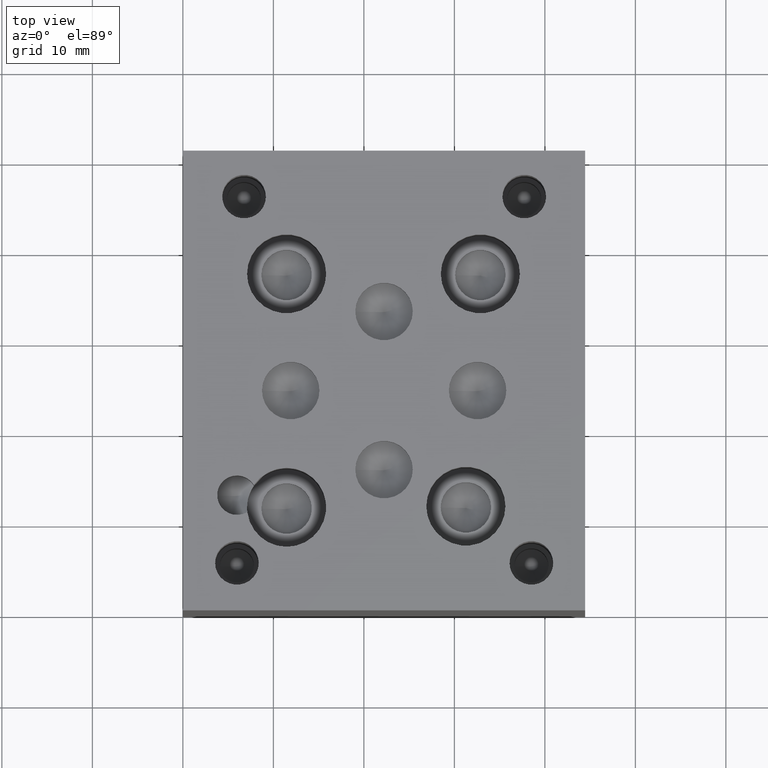
[diagram: clean part render]
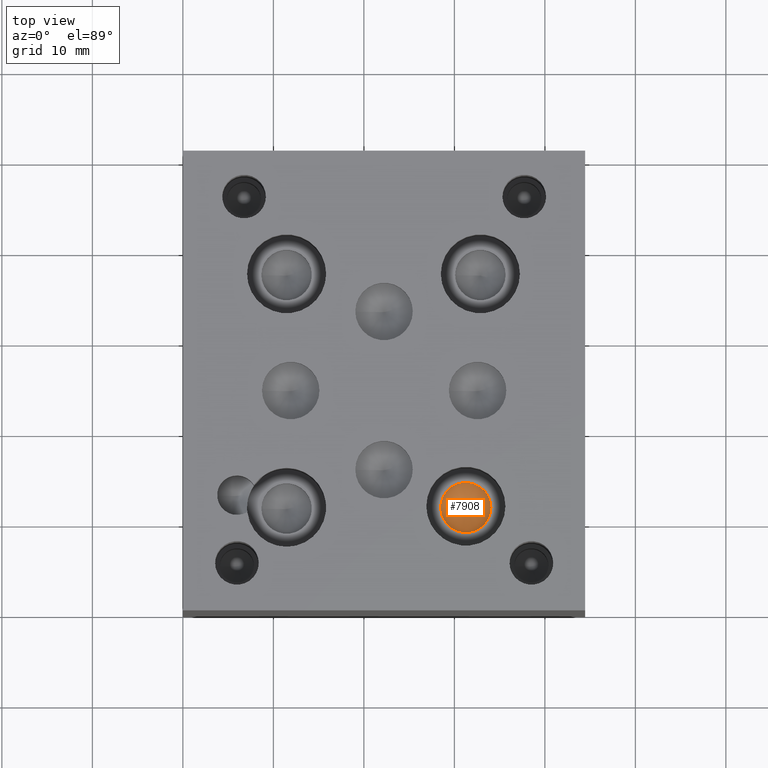
[diagram: same view with one face highlighted and labeled with its STEP entity id]
A machine part, top view. The second image highlights one B-rep face of the part: STEP entity #7908.
In plain terms, the highlighted conical surface has half-angle 60 deg.
Its self-contained STEP definition (entity closure, byte-faithful):
#24=CONICAL_SURFACE('',#8304,1.39065,1.0471975511966);
#92=CIRCLE('',#8305,2.7813);
#93=CIRCLE('',#8306,2.7813);
#829=FACE_OUTER_BOUND('',#1262,.T.);
#1262=EDGE_LOOP('',(#6737,#6738,#6739,#6740));
#2109=LINE('',#13113,#2925);
#2925=VECTOR('',#9876,1.39065);
#3633=VERTEX_POINT('',#13109);
#3634=VERTEX_POINT('',#13110);
#3635=VERTEX_POINT('',#13112);
#4695=EDGE_CURVE('',#3633,#3634,#92,.T.);
#4696=EDGE_CURVE('',#3634,#3635,#2109,.T.);
#4697=EDGE_CURVE('',#3634,#3633,#93,.T.);
#6737=ORIENTED_EDGE('',*,*,#4695,.T.);
#6738=ORIENTED_EDGE('',*,*,#4696,.T.);
#6739=ORIENTED_EDGE('',*,*,#4696,.F.);
#6740=ORIENTED_EDGE('',*,*,#4697,.T.);
#7908=ADVANCED_FACE('',(#829),#24,.F.);
#8304=AXIS2_PLACEMENT_3D('',#13108,#9872,#9873);
#8305=AXIS2_PLACEMENT_3D('',#13111,#9874,#9875);
#8306=AXIS2_PLACEMENT_3D('',#13114,#9877,#9878);
#9872=DIRECTION('center_axis',(0.,0.,1.));
#9873=DIRECTION('ref_axis',(1.,0.,0.));
#9874=DIRECTION('center_axis',(0.,0.,1.));
#9875=DIRECTION('ref_axis',(1.,0.,0.));
#9876=DIRECTION('',(0.866025403784439,1.06057523872491E-16,-0.5));
#9877=DIRECTION('center_axis',(0.,0.,1.));
#9878=DIRECTION('ref_axis',(1.,0.,0.));
#13108=CARTESIAN_POINT('Origin',(31.2674,11.5062,34.1165278481514));
#13109=CARTESIAN_POINT('',(34.0487,11.5062,34.91942));
#13110=CARTESIAN_POINT('',(28.4861,11.5062,34.91942));
#13111=CARTESIAN_POINT('Origin',(31.2674,11.5062,34.91942));
#13112=CARTESIAN_POINT('',(31.2674,11.5062,33.3136356963029));
#13113=CARTESIAN_POINT('',(29.87675,11.5062,34.1165278481514));
#13114=CARTESIAN_POINT('Origin',(31.2674,11.5062,34.91942));